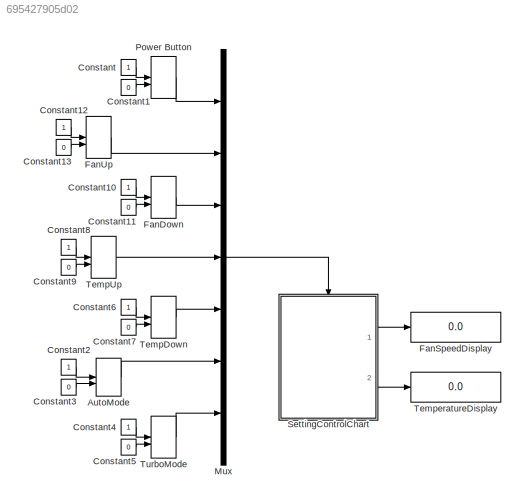
MODEL slx_695427905d02
KIND model
BLOCK [ManualSwitch] AutoMode
  CurrentSetting = 0
BLOCK [Constant] Constant
BLOCK [Constant] Constant1
  Value = 0
BLOCK [Constant] Constant10
BLOCK [Constant] Constant11
  Value = 0
BLOCK [Constant] Constant12
BLOCK [Constant] Constant13
  Value = 0
BLOCK [Constant] Constant2
BLOCK [Constant] Constant3
  Value = 0
BLOCK [Constant] Constant4
BLOCK [Constant] Constant5
  Value = 0
BLOCK [Constant] Constant6
BLOCK [Constant] Constant7
  Value = 0
BLOCK [Constant] Constant8
BLOCK [Constant] Constant9
  Value = 0
BLOCK [ManualSwitch] FanDown
  CurrentSetting = 0
BLOCK [Display] FanSpeedDisplay
  Decimation = 1
  Ports = [1]
BLOCK [ManualSwitch] FanUp
  CurrentSetting = 0
BLOCK [Mux] Mux
  DisplayOption = bar
  Inputs = 7
  Ports = [7, 1]
BLOCK [ManualSwitch] Power Button
  CurrentSetting = 0
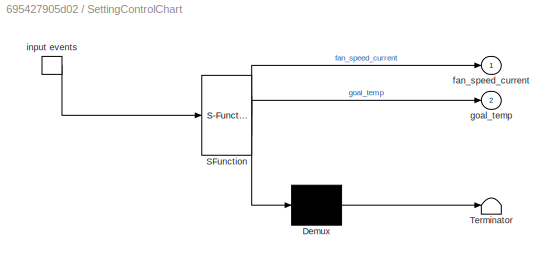
BLOCK [SubSystem] SettingControlChart
  ErrorFcn = Stateflow.Translate.translate
  PermitHierarchicalResolution = ExplicitOnly
  Ports = [0, 2, 0, 1]
  RequestExecContextInheritance = off
  SFBlockType = Chart
  TreatAsAtomicUnit = on
BLOCK [Demux] SettingControlChart/ Demux 
  Outputs = 1
  Ports = [1, 1]
BLOCK [S-Function] SettingControlChart/ SFunction 
  EnableBusSupport = on
  FunctionName = sf_sfun
  PortCounts = [1 3]
  Ports = [1, 3]
  Tag = Stateflow S-Function hw2_hvac 3
BLOCK [Terminator] SettingControlChart/ Terminator 
BLOCK [TriggerPort] SettingControlChart/ input events 
  Ports = [0, 1]
  ShowOutputPort = on
  StatesWhenEnabling = held
  TriggerType = either
BLOCK [Outport] SettingControlChart/fan_speed_current
  IconDisplay = Port number
BLOCK [Outport] SettingControlChart/goal_temp
  IconDisplay = Port number
  Port = 2
BLOCK [ManualSwitch] TempDown
  CurrentSetting = 0
BLOCK [ManualSwitch] TempUp
  CurrentSetting = 0
BLOCK [Display] TemperatureDisplay
  Decimation = 1
  Ports = [1]
BLOCK [ManualSwitch] TurboMode
  CurrentSetting = 0
LINE AutoMode:1 -> Mux:6
LINE Constant10:1 -> FanDown:1
LINE Constant11:1 -> FanDown:2
LINE Constant12:1 -> FanUp:1
LINE Constant13:1 -> FanUp:2
LINE Constant1:1 -> Power Button:2
LINE Constant2:1 -> AutoMode:1
LINE Constant3:1 -> AutoMode:2
LINE Constant4:1 -> TurboMode:1
LINE Constant5:1 -> TurboMode:2
LINE Constant6:1 -> TempDown:1
LINE Constant7:1 -> TempDown:2
LINE Constant8:1 -> TempUp:1
LINE Constant9:1 -> TempUp:2
LINE Constant:1 -> Power Button:1
LINE FanDown:1 -> Mux:3
LINE FanUp:1 -> Mux:2
LINE Mux:1 -> SettingControlChart:trigger
LINE Power Button:1 -> Mux:1
LINE SettingControlChart:1 -> FanSpeedDisplay:1
LINE SettingControlChart:2 -> TemperatureDisplay:1
LINE TempDown:1 -> Mux:5
LINE TempUp:1 -> Mux:4
LINE TurboMode:1 -> Mux:7
